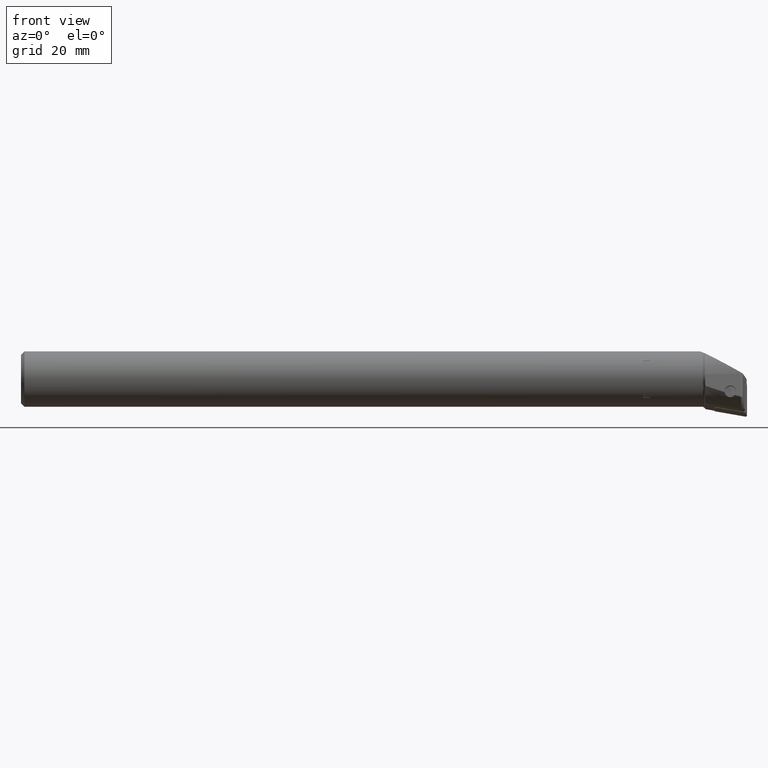
[diagram: clean part render]
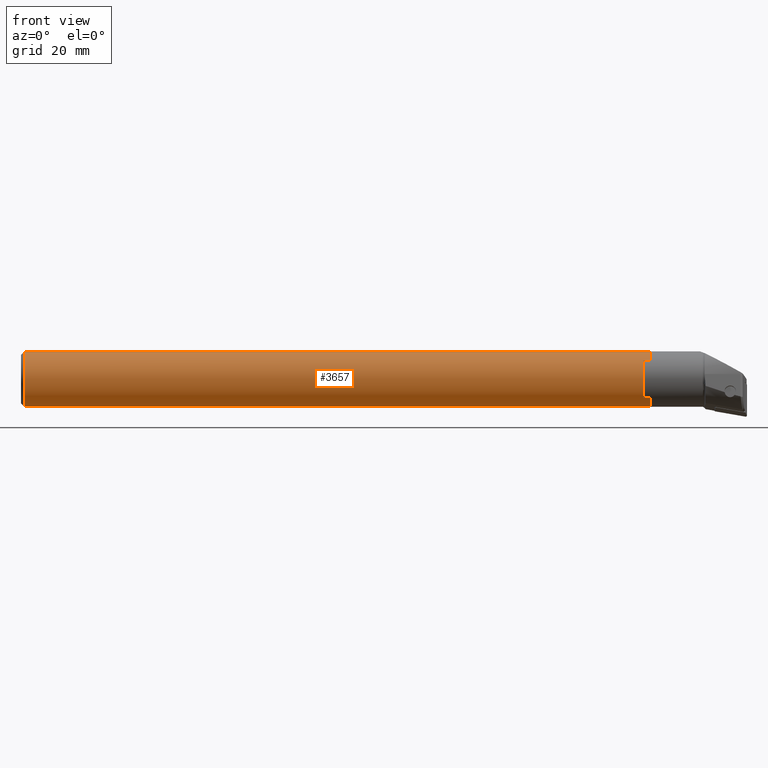
[diagram: same view with one face highlighted and labeled with its STEP entity id]
A machine part, front view. The second image highlights one B-rep face of the part: STEP entity #3657.
In plain terms, the highlighted cylindrical surface (edge-blend (fillet) strip) has radius 8 mm, axis along (-1, -0, 0).
Its self-contained STEP definition (entity closure, byte-faithful):
#164 = ORIENTED_EDGE ( 'NONE', *, *, #3473, .F. ) ;
#168 = ORIENTED_EDGE ( 'NONE', *, *, #3483, .T. ) ;
#170 = ORIENTED_EDGE ( 'NONE', *, *, #3487, .F. ) ;
#177 = ORIENTED_EDGE ( 'NONE', *, *, #3474, .F. ) ;
#178 = ORIENTED_EDGE ( 'NONE', *, *, #3475, .F. ) ;
#184 = ORIENTED_EDGE ( 'NONE', *, *, #3476, .T. ) ;
#188 = ORIENTED_EDGE ( 'NONE', *, *, #3488, .T. ) ;
#194 = ORIENTED_EDGE ( 'NONE', *, *, #3477, .F. ) ;
#821 = CIRCLE ( 'NONE', #2537, 8.000000000000007100 ) ;
#837 = VECTOR ( 'NONE', #4021, 1000.000000000000000 ) ;
#843 = LINE ( 'NONE', #3990, #850 ) ;
#850 = VECTOR ( 'NONE', #3989, 1000.000000000000000 ) ;
#856 = LINE ( 'NONE', #4026, #882 ) ;
#864 = CIRCLE ( 'NONE', #2526, 8.000000000000007100 ) ;
#874 = LINE ( 'NONE', #3994, #879 ) ;
#879 = VECTOR ( 'NONE', #3998, 1000.000000000000000 ) ;
#882 = VECTOR ( 'NONE', #4031, 1000.000000000000000 ) ;
#891 = CIRCLE ( 'NONE', #2529, 8.000000000000007100 ) ;
#892 = CIRCLE ( 'NONE', #2530, 8.000000000000007100 ) ;
#894 = LINE ( 'NONE', #4020, #837 ) ;
#1463 = EDGE_LOOP ( 'NONE', ( #170, #194, #184, #168, #178, #177, #188, #164 ) ) ;
#2526 = AXIS2_PLACEMENT_3D ( 'NONE', #3991, #3992, #3993 ) ;
#2529 = AXIS2_PLACEMENT_3D ( 'NONE', #3995, #3996, #3997 ) ;
#2530 = AXIS2_PLACEMENT_3D ( 'NONE', #3999, #4000, #4001 ) ;
#2537 = AXIS2_PLACEMENT_3D ( 'NONE', #4017, #4018, #4019 ) ;
#3473 = EDGE_CURVE ( 'NONE', #4204, #4221, #864, .T. ) ;
#3474 = EDGE_CURVE ( 'NONE', #4209, #4397, #891, .T. ) ;
#3475 = EDGE_CURVE ( 'NONE', #4397, #4308, #843, .T. ) ;
#3476 = EDGE_CURVE ( 'NONE', #4410, #4385, #874, .T. ) ;
#3477 = EDGE_CURVE ( 'NONE', #4410, #4376, #892, .T. ) ;
#3483 = EDGE_CURVE ( 'NONE', #4385, #4308, #821, .T. ) ;
#3487 = EDGE_CURVE ( 'NONE', #4376, #4204, #894, .T. ) ;
#3488 = EDGE_CURVE ( 'NONE', #4209, #4221, #856, .T. ) ;
#3657 = ADVANCED_FACE ( 'NONE', ( #4550 ), #4575, .T. ) ;
#3989 = DIRECTION ( 'NONE',  ( -1.000000000000000000, -1.081007496269136300E-016, 4.550406820893250800E-017 ) ) ;
#3990 = CARTESIAN_POINT ( 'NONE',  ( 1.950000000000014200, -5.925000000000013100, 5.375348825890284000 ) ) ;
#3991 = CARTESIAN_POINT ( 'NONE',  ( -179.0000000000004300, -1.157295511637398800E-014, -1.653830408135382800E-016 ) ) ;
#3992 = DIRECTION ( 'NONE',  ( -1.000000000000000000, -1.081007496269136300E-016, 4.550406820893250800E-017 ) ) ;
#3993 = DIRECTION ( 'NONE',  ( 0.0000000000000000000, -5.551115123125782700E-017, 1.000000000000000000 ) ) ;
#3994 = CARTESIAN_POINT ( 'NONE',  ( 1.950000000000041900, -5.925000000000011400, -5.375348825890292800 ) ) ;
#3995 = CARTESIAN_POINT ( 'NONE',  ( 1.950000000000000400, 5.583709814272271300E-017, 4.123749905912599300E-015 ) ) ;
#3996 = DIRECTION ( 'NONE',  ( 1.000000000000000000, 1.081007496269136300E-016, -4.550406820893250800E-017 ) ) ;
#3997 = DIRECTION ( 'NONE',  ( -8.131516293641275900E-017, 5.551115123125777800E-017, -1.000000000000000000 ) ) ;
#3998 = DIRECTION ( 'NONE',  ( -1.000000000000000000, -1.081007496269136300E-016, 4.550406820893250800E-017 ) ) ;
#3999 = CARTESIAN_POINT ( 'NONE',  ( 1.950000000000000400, 5.583709814272271300E-017, 4.123749905912599300E-015 ) ) ;
#4000 = DIRECTION ( 'NONE',  ( 1.000000000000000000, 1.081007496269136300E-016, -4.550406820893250800E-017 ) ) ;
#4001 = DIRECTION ( 'NONE',  ( -8.131516293641275900E-017, 5.551115123125777800E-017, -1.000000000000000000 ) ) ;
#4017 = CARTESIAN_POINT ( 'NONE',  ( 0.0000000000000000000, 0.0000000000000000000, 0.0000000000000000000 ) ) ;
#4018 = DIRECTION ( 'NONE',  ( -1.000000000000000000, -1.081007496269136300E-016, 4.550406820893250800E-017 ) ) ;
#4019 = DIRECTION ( 'NONE',  ( 8.617803217782845300E-017, -5.551115123125777800E-017, 1.000000000000000000 ) ) ;
#4020 = CARTESIAN_POINT ( 'NONE',  ( -184.6546161680327000, -3.747448090156407900E-014, -8.000000000000005300 ) ) ;
#4021 = DIRECTION ( 'NONE',  ( -1.000000000000000000, -1.081007496269136300E-016, 4.550406820893250800E-017 ) ) ;
#4026 = CARTESIAN_POINT ( 'NONE',  ( -184.6546161680327000, -3.934237676058209200E-014, 8.000000000000008900 ) ) ;
#4031 = DIRECTION ( 'NONE',  ( -1.000000000000000000, -1.081007496269136300E-016, 4.550406820893250800E-017 ) ) ;
#4204 = VERTEX_POINT ( 'NONE', #5160 ) ;
#4209 = VERTEX_POINT ( 'NONE', #5166 ) ;
#4221 = VERTEX_POINT ( 'NONE', #5165 ) ;
#4308 = VERTEX_POINT ( 'NONE', #5215 ) ;
#4376 = VERTEX_POINT ( 'NONE', #5246 ) ;
#4385 = VERTEX_POINT ( 'NONE', #5252 ) ;
#4397 = VERTEX_POINT ( 'NONE', #5249 ) ;
#4410 = VERTEX_POINT ( 'NONE', #5265 ) ;
#4550 = FACE_OUTER_BOUND ( 'NONE', #1463, .T. ) ;
#4575 = CYLINDRICAL_SURFACE ( 'NONE', #4996, 8.000000000000007100 ) ;
#4996 = AXIS2_PLACEMENT_3D ( 'NONE', #5135, #5133, #5131 ) ;
#5131 = DIRECTION ( 'NONE',  ( 0.0000000000000000000, -5.551115123125782700E-017, 1.000000000000000000 ) ) ;
#5133 = DIRECTION ( 'NONE',  ( -1.000000000000000000, -1.081007496269136300E-016, 4.550406820893250800E-017 ) ) ;
#5135 = CARTESIAN_POINT ( 'NONE',  ( -184.6546161680327000, -3.889828755073202900E-014, 1.078580501998626200E-015 ) ) ;
#5160 = CARTESIAN_POINT ( 'NONE',  ( -179.0000000000004300, -2.708279733245227100E-014, -8.000000000000000000 ) ) ;
#5165 = CARTESIAN_POINT ( 'NONE',  ( -179.0000000000004300, -1.201704432622405000E-014, 8.000000000000007100 ) ) ;
#5166 = CARTESIAN_POINT ( 'NONE',  ( 1.950000000000000800, -2.895069319147030000E-014, 8.000000000000003600 ) ) ;
#5215 = CARTESIAN_POINT ( 'NONE',  ( 0.0000000000000000000, -5.925000000000008700, 5.375348825890289300 ) ) ;
#5246 = CARTESIAN_POINT ( 'NONE',  ( 1.950000000000000000, -2.708279733245225600E-014, -7.999999999999996400 ) ) ;
#5249 = CARTESIAN_POINT ( 'NONE',  ( 1.950000000000014200, -5.925000000000013100, 5.375348825890284000 ) ) ;
#5252 = CARTESIAN_POINT ( 'NONE',  ( 2.081668171172168500E-014, -5.925000000000013100, -5.375348825890275100 ) ) ;
#5265 = CARTESIAN_POINT ( 'NONE',  ( 1.950000000000041900, -5.925000000000011400, -5.375348825890292800 ) ) ;